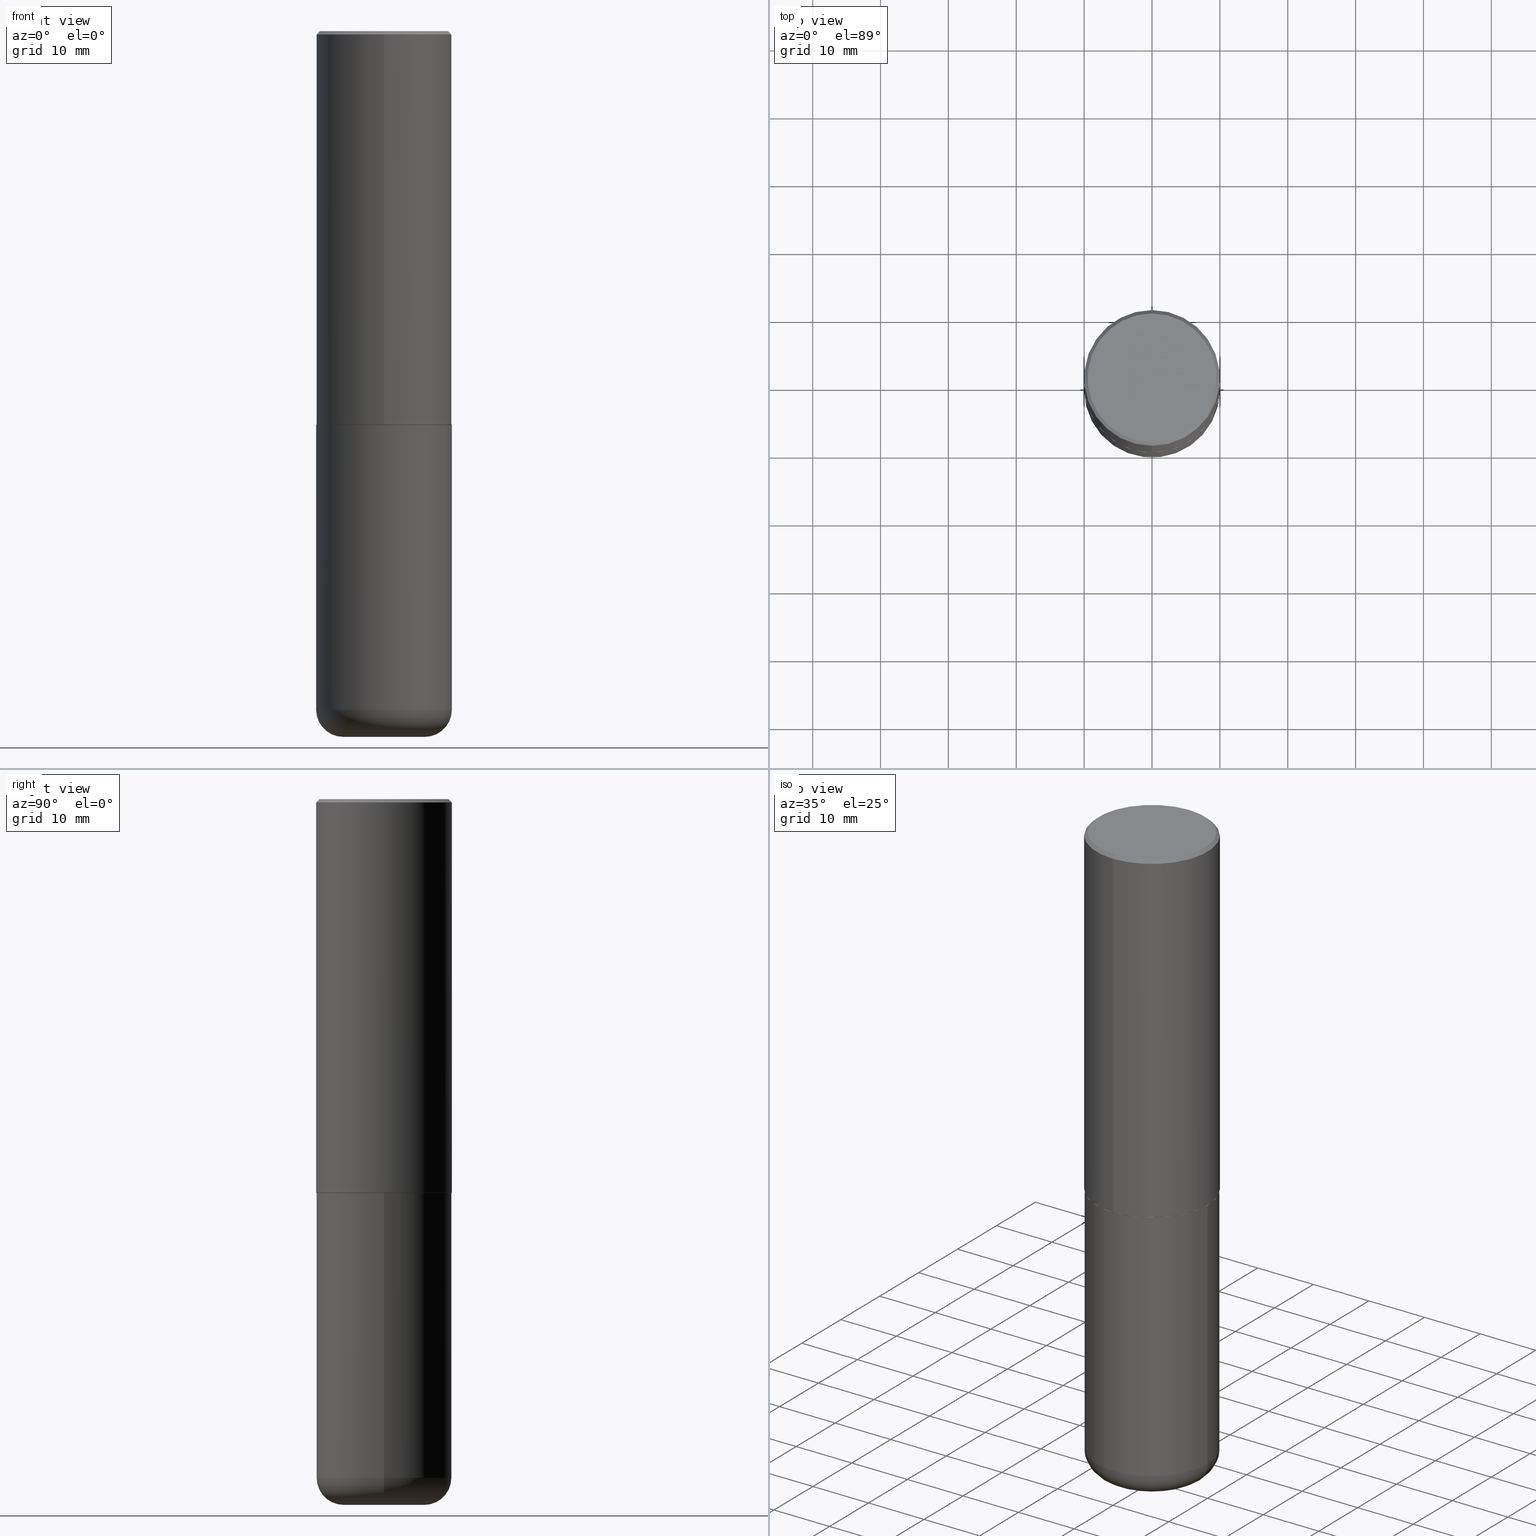
[diagram: canonical four-view strip — front | top / right | iso, engineering-drawing reading convention]
A machine part, canonical four-view strip (front | top / right | iso — engineering-drawing reading convention). The complete STEP part file that produces these views, byte-faithful:
ISO-10303-21;
HEADER;
FILE_DESCRIPTION (( 'STEP AP203' ),
    '1' );
FILE_NAME ('43497.STEP',
    '2024-03-04T06:41:14',
    ( '' ),
    ( '' ),
    'SwSTEP 2.0',
    'SolidWorks 2023',
    '' );
FILE_SCHEMA (( 'CONFIG_CONTROL_DESIGN' ));
ENDSEC;

DATA;
#1 = AXIS2_PLACEMENT_3D ( 'NONE', #91, #226, #31 ) ;
#2 = AXIS2_PLACEMENT_3D ( 'NONE', #84, #58, #211 ) ;
#3 = ADVANCED_FACE ( 'NONE', ( #16 ), #225, .T. ) ;
#4 = ORIENTED_EDGE ( 'NONE', *, *, #263, .F. ) ;
#5 = DIRECTION ( 'NONE',  ( -6.982962677686265922E-15, -1.000000000000000000, 3.490275841951731363E-15 ) ) ;
#6 = ORIENTED_EDGE ( 'NONE', *, *, #345, .F. ) ;
#7 = CIRCLE ( 'NONE', #312, 0.3926999999999999935 ) ;
#8 = CARTESIAN_POINT ( 'NONE',  ( 2.793854037008770686E-15, 0.3926999999999920554, -2.283500000000001862 ) ) ;
#9 = DIRECTION ( 'NONE',  ( -4.851104656540959542E-15, -0.7071067811865493491, -0.7071067811865457964 ) ) ;
#10 = DIRECTION ( 'NONE',  ( 0.000000000000000000, 0.000000000000000000, 1.000000000000000000 ) ) ;
#11 = CARTESIAN_POINT ( 'NONE',  ( -0.3936999999999999389, -1.094855528033794942E-14, -3.937000000000000277 ) ) ;
#12 = ORIENTED_EDGE ( 'NONE', *, *, #351, .F. ) ;
#13 = DIRECTION ( 'NONE',  ( -2.445468806185136597E-29, 3.491481338843145583E-15, 1.000000000000000000 ) ) ;
#14 = FACE_OUTER_BOUND ( 'NONE', #178, .T. ) ;
#15 = APPLICATION_PROTOCOL_DEFINITION ( 'international standard', 'config_control_design', 1994, #86 ) ;
#16 = FACE_OUTER_BOUND ( 'NONE', #124, .T. ) ;
#17 = TOROIDAL_SURFACE ( 'NONE', #117, 0.2362000000000000210, 0.1574999999999998346 ) ;
#18 = VECTOR ( 'NONE', #193, 39.37007874015748143 ) ;
#19 = CARTESIAN_POINT ( 'NONE',  ( -2.742209443527340799E-15, -0.3927000000000079871, -2.283499999999999197 ) ) ;
#20 = CC_DESIGN_PERSON_AND_ORGANIZATION_ASSIGNMENT ( #368, #402, ( #273 ) ) ;
#21 = ORIENTED_EDGE ( 'NONE', *, *, #265, .F. ) ;
#22 = CARTESIAN_POINT ( 'NONE',  ( 0.2362000000000000210, -1.539533781549495994E-14, -3.937000000000000277 ) ) ;
#23 = DATE_TIME_ROLE ( 'classification_date' ) ;
#24 = DIRECTION ( 'NONE',  ( 2.446310600165217615E-29, -3.490275841951731758E-15, -1.000000000000000000 ) ) ;
#25 = CIRCLE ( 'NONE', #393, 0.3937000000000000499 ) ;
#26 = CIRCLE ( 'NONE', #367, 0.3926999999999999935 ) ;
#27 = EDGE_CURVE ( 'NONE', #400, #52, #111, .T. ) ;
#28 = VERTEX_POINT ( 'NONE', #308 ) ;
#29 = ORIENTED_EDGE ( 'NONE', *, *, #247, .T. ) ;
#30 = LINE ( 'NONE', #62, #123 ) ;
#31 = DIRECTION ( 'NONE',  ( 1.000000000000000000, -6.982962677686262766E-15, 0.000000000000000000 ) ) ;
#32 = DIRECTION ( 'NONE',  ( -2.446310600165217615E-29, 3.490275841951731758E-15, 1.000000000000000000 ) ) ;
#33 = AXIS2_PLACEMENT_3D ( 'NONE', #136, #10, #165 ) ;
#34 = CC_DESIGN_PERSON_AND_ORGANIZATION_ASSIGNMENT ( #341, #51, ( #390 ) ) ;
#35 = ORIENTED_EDGE ( 'NONE', *, *, #134, .T. ) ;
#36 = DIRECTION ( 'NONE',  ( -6.982962677686265922E-15, -1.000000000000000000, 3.490275841951731758E-15 ) ) ;
#37 = AXIS2_PLACEMENT_3D ( 'NONE', #160, #293, #201 ) ;
#38 = LOCAL_TIME ( 1, 41, 14.00000000000000000, #288 ) ;
#39 = CARTESIAN_POINT ( 'NONE',  ( -2.749192406205084005E-15, -0.3937000000000001609, 1.374121598976397400E-15 ) ) ;
#40 = VERTEX_POINT ( 'NONE', #19 ) ;
#41 = ORIENTED_EDGE ( 'NONE', *, *, #395, .F. ) ;
#42 = CONICAL_SURFACE ( 'NONE', #281, 0.3937000000000000499, 0.7853981633974473908 ) ;
#43 = ORIENTED_EDGE ( 'NONE', *, *, #247, .F. ) ;
#44 = APPROVAL_PERSON_ORGANIZATION ( #339, #183, #412 ) ;
#45 = CARTESIAN_POINT ( 'NONE',  ( 9.627810689950883669E-29, -1.374596203102546341E-14, -3.937000000000000277 ) ) ;
#46 = ORIENTED_EDGE ( 'NONE', *, *, #27, .F. ) ;
#47 = EDGE_LOOP ( 'NONE', ( #206, #262, #120, #126 ) ) ;
#48 = DIRECTION ( 'NONE',  ( -2.446310600165217615E-29, 3.490275841951731758E-15, 1.000000000000000000 ) ) ;
#49 = CONICAL_SURFACE ( 'NONE', #151, 0.3926999999999999935, 0.7853981633975507526 ) ;
#50 = DIRECTION ( 'NONE',  ( -6.982962677686265133E-15, -1.000000000000000000, 3.478288761986584267E-15 ) ) ;
#51 = PERSON_AND_ORGANIZATION_ROLE ( 'design_supplier' ) ;
#52 = VERTEX_POINT ( 'NONE', #234 ) ;
#53 = ORIENTED_EDGE ( 'NONE', *, *, #27, .T. ) ;
#54 = PERSON_AND_ORGANIZATION_ROLE ( 'classification_officer' ) ;
#55 = ORIENTED_EDGE ( 'NONE', *, *, #292, .T. ) ;
#56 = ADVANCED_FACE ( 'NONE', ( #313 ), #391, .F. ) ;
#57 = ORIENTED_EDGE ( 'NONE', *, *, #327, .T. ) ;
#58 = DIRECTION ( 'NONE',  ( -2.446310600165217615E-29, 3.490275841951731758E-15, 1.000000000000000000 ) ) ;
#59 = VECTOR ( 'NONE', #319, 39.37007874015748143 ) ;
#60 = LINE ( 'NONE', #290, #18 ) ;
#61 = DIRECTION ( 'NONE',  ( 1.000000000000000000, -6.982962677686267499E-15, 0.000000000000000000 ) ) ;
#62 = CARTESIAN_POINT ( 'NONE',  ( -2.700978061722651252E-15, -0.3937000000000001054, -0.01999999999999870978 ) ) ;
#63 = ADVANCED_FACE ( 'NONE', ( #237 ), #328, .T. ) ;
#64 = CARTESIAN_POINT ( 'NONE',  ( 5.584228018923760468E-29, -7.972797637248324710E-15, -2.283500000000000529 ) ) ;
#65 = APPROVAL_STATUS ( 'not_yet_approved' ) ;
#66 = AXIS2_PLACEMENT_3D ( 'NONE', #83, #342, #208 ) ;
#67 = CLOSED_SHELL ( 'NONE', ( #235, #63, #289, #110, #71, #3, #56, #386 ) ) ;
#68 = MECHANICAL_CONTEXT ( 'NONE', #381, 'mechanical' ) ;
#69 = DIRECTION ( 'NONE',  ( -2.446310600165217615E-29, 3.490275841951731363E-15, 1.000000000000000000 ) ) ;
#70 = CARTESIAN_POINT ( 'NONE',  ( 9.627810689950883669E-29, -1.374596203102546341E-14, -3.937000000000000277 ) ) ;
#71 = ADVANCED_FACE ( 'NONE', ( #269 ), #394, .T. ) ;
#72 = DATE_AND_TIME ( #310, #322 ) ;
#73 = AXIS2_PLACEMENT_3D ( 'NONE', #129, #156, #417 ) ;
#74 = ORIENTED_EDGE ( 'NONE', *, *, #345, .T. ) ;
#75 = CIRCLE ( 'NONE', #306, 0.3937000000000002720 ) ;
#76 = CALENDAR_DATE ( 2024, 4, 3 ) ;
#77 = ORIENTED_EDGE ( 'NONE', *, *, #204, .F. ) ;
#78 = EDGE_CURVE ( 'NONE', #150, #295, #25, .T. ) ;
#79 = DIRECTION ( 'NONE',  ( -2.445468806185136877E-29, 3.491481338843145188E-15, 1.000000000000000000 ) ) ;
#80 = LINE ( 'NONE', #209, #161 ) ;
#81 = APPROVAL_DATE_TIME ( #249, #105 ) ;
#82 = APPROVAL_DATE_TIME ( #399, #183 ) ;
#83 = CARTESIAN_POINT ( 'NONE',  ( 1.662671372229937224E-28, -4.824615803317197833E-15, -4.094500000000000028 ) ) ;
#84 = CARTESIAN_POINT ( 'NONE',  ( 4.892621200330456179E-31, -6.980551683903491963E-17, -0.02000000000000008715 ) ) ;
#85 = DIRECTION ( 'NONE',  ( 1.000000000000000000, -6.982962677686272233E-15, 0.000000000000000000 ) ) ;
#86 = APPLICATION_CONTEXT ( 'configuration controlled 3d designs of mechanical parts and assemblies' ) ;
#87 = DIRECTION ( 'NONE',  ( -2.446310600165217615E-29, 3.490275841951731758E-15, 1.000000000000000000 ) ) ;
#88 = DIRECTION ( 'NONE',  ( 7.105427357601001859E-15, 1.000000000000000000, -3.491481338843145583E-15 ) ) ;
#89 = APPROVAL_DATE_TIME ( #200, #174 ) ;
#90 = DIRECTION ( 'NONE',  ( -2.446310600165217615E-29, 3.490275841951731758E-15, 1.000000000000000000 ) ) ;
#91 = CARTESIAN_POINT ( 'NONE',  ( 1.001297202692504102E-28, -1.429587034189325834E-14, -4.094500000000000028 ) ) ;
#92 = AXIS2_PLACEMENT_3D ( 'NONE', #135, #325, #36 ) ;
#93 = LOCAL_TIME ( 1, 41, 14.00000000000000000, #374 ) ;
#94 = EDGE_CURVE ( 'NONE', #329, #150, #128, .T. ) ;
#95 = CARTESIAN_POINT ( 'NONE',  ( 2.609533152651356620E-15, 0.3736999999999999211, -1.263990460575568665E-15 ) ) ;
#96 = ORIENTED_EDGE ( 'NONE', *, *, #365, .F. ) ;
#97 = EDGE_LOOP ( 'NONE', ( #106, #253, #53, #215 ) ) ;
#98 = CARTESIAN_POINT ( 'NONE',  ( 2.797406750687543580E-15, 0.3936999999999923339, -2.282500000000001528 ) ) ;
#99 = CIRCLE ( 'NONE', #330, 0.3937000000000000499 ) ;
#100 = CIRCLE ( 'NONE', #131, 0.3937000000000002720 ) ;
#101 = ADVANCED_FACE ( 'NONE', ( #121 ), #316, .T. ) ;
#102 = PLANE ( 'NONE',  #411 ) ;
#103 = CIRCLE ( 'NONE', #196, 0.2362000000000000766 ) ;
#104 = CIRCLE ( 'NONE', #109, 0.3937000000000000499 ) ;
#105 = APPROVAL ( #371, 'UNSPECIFIED' ) ;
#106 = ORIENTED_EDGE ( 'NONE', *, *, #164, .F. ) ;
#107 = CARTESIAN_POINT ( 'NONE',  ( 9.627810689950883669E-29, -1.374596203102546341E-14, -3.937000000000000277 ) ) ;
#108 = ORIENTED_EDGE ( 'NONE', *, *, #351, .T. ) ;
#109 = AXIS2_PLACEMENT_3D ( 'NONE', #45, #382, #61 ) ;
#110 = ADVANCED_FACE ( 'NONE', ( #231 ), #42, .T. ) ;
#111 = LINE ( 'NONE', #373, #259 ) ;
#112 = CALENDAR_DATE ( 2024, 4, 3 ) ;
#113 = ORIENTED_EDGE ( 'NONE', *, *, #352, .T. ) ;
#114 =( NAMED_UNIT ( * ) PLANE_ANGLE_UNIT ( ) SI_UNIT ( $, .RADIAN. ) );
#115 = PERSON_AND_ORGANIZATION_ROLE ( 'creator' ) ;
#116 = CONICAL_SURFACE ( 'NONE', #169, 0.3937000000000000499, 0.7853981633974473908 ) ;
#117 = AXIS2_PLACEMENT_3D ( 'NONE', #107, #300, #248 ) ;
#118 = CC_DESIGN_SECURITY_CLASSIFICATION ( #205, ( #390 ) ) ;
#119 = DIRECTION ( 'NONE',  ( 1.000000000000000000, -6.982962677686265922E-15, 4.876176775795935793E-29 ) ) ;
#120 = ORIENTED_EDGE ( 'NONE', *, *, #78, .F. ) ;
#121 = FACE_OUTER_BOUND ( 'NONE', #97, .T. ) ;
#122 = PRODUCT ( '43497', '43497', '', ( #68 ) ) ;
#123 = VECTOR ( 'NONE', #9, 39.37007874015748143 ) ;
#124 = EDGE_LOOP ( 'NONE', ( #4, #210, #113, #384 ) ) ;
#125 = UNCERTAINTY_MEASURE_WITH_UNIT (LENGTH_MEASURE( 1.000000000000000082E-05 ), #250, 'distance_accuracy_value', 'NONE');
#126 = ORIENTED_EDGE ( 'NONE', *, *, #94, .F. ) ;
#127 = PLANE ( 'NONE',  #409 ) ;
#128 = LINE ( 'NONE', #39, #59 ) ;
#129 = CARTESIAN_POINT ( 'NONE',  ( 0.000000000000000000, 0.000000000000000000, 0.000000000000000000 ) ) ;
#130 = EDGE_CURVE ( 'NONE', #28, #403, #397, .T. ) ;
#131 = AXIS2_PLACEMENT_3D ( 'NONE', #354, #32, #389 ) ;
#132 = CARTESIAN_POINT ( 'NONE',  ( 4.892621200330456179E-31, -6.980551683903491963E-17, -0.02000000000000008715 ) ) ;
#133 = ORIENTED_EDGE ( 'NONE', *, *, #236, .T. ) ;
#134 = EDGE_CURVE ( 'NONE', #264, #137, #103, .T. ) ;
#135 = CARTESIAN_POINT ( 'NONE',  ( 0.000000000000000000, 0.000000000000000000, 0.000000000000000000 ) ) ;
#136 = CARTESIAN_POINT ( 'NONE',  ( 0.000000000000000000, 0.000000000000000000, 0.000000000000000000 ) ) ;
#137 = VERTEX_POINT ( 'NONE', #186 ) ;
#138 = DIRECTION ( 'NONE',  ( -6.982962677686265133E-15, -1.000000000000000000, 3.478288761986584267E-15 ) ) ;
#139 = CC_DESIGN_DATE_AND_TIME_ASSIGNMENT ( #377, #213, ( #273 ) ) ;
#140 = EDGE_LOOP ( 'NONE', ( #74, #379, #96, #189 ) ) ;
#141 = DIRECTION ( 'NONE',  ( -2.446310600165217895E-29, 3.490275841951731363E-15, 1.000000000000000000 ) ) ;
#142 = LENGTH_MEASURE_WITH_UNIT ( LENGTH_MEASURE( 0.02539999999999999897 ), #177 );
#143 = CIRCLE ( 'NONE', #216, 0.1574999999999997791 ) ;
#144 = DIRECTION ( 'NONE',  ( -6.982962677686265133E-15, -1.000000000000000000, 3.491137977679279424E-15 ) ) ;
#145 = COORDINATED_UNIVERSAL_TIME_OFFSET ( 5, 0, .BEHIND. ) ;
#146 = PERSON_AND_ORGANIZATION ( #168, #260 ) ;
#147 = ORIENTED_EDGE ( 'NONE', *, *, #318, .T. ) ;
#148 = PRODUCT_RELATED_PRODUCT_CATEGORY ( 'detail', '', ( #122 ) ) ;
#149 = DIRECTION ( 'NONE',  ( -2.446310600165217615E-29, 3.490275841951731758E-15, 1.000000000000000000 ) ) ;
#150 = VERTEX_POINT ( 'NONE', #355 ) ;
#151 = AXIS2_PLACEMENT_3D ( 'NONE', #180, #370, #138 ) ;
#152 =( GEOMETRIC_REPRESENTATION_CONTEXT ( 3 ) GLOBAL_UNCERTAINTY_ASSIGNED_CONTEXT ( ( #125 ) ) GLOBAL_UNIT_ASSIGNED_CONTEXT ( ( #250, #114, #251 ) ) REPRESENTATION_CONTEXT ( 'NONE', 'WORKASPACE' ) );
#153 = CARTESIAN_POINT ( 'NONE',  ( 0.2362000000000000766, -1.594524612636275486E-14, -4.094500000000000028 ) ) ;
#154 = EDGE_CURVE ( 'NONE', #197, #400, #99, .T. ) ;
#155 = DIRECTION ( 'NONE',  ( -2.445468806185136597E-29, 3.491481338843145583E-15, 1.000000000000000000 ) ) ;
#156 = DIRECTION ( 'NONE',  ( -2.445468806185136597E-29, 3.491481338843145583E-15, 1.000000000000000000 ) ) ;
#157 = CIRCLE ( 'NONE', #356, 0.3736999999999999211 ) ;
#158 = DIRECTION ( 'NONE',  ( 1.000000000000000000, -6.982962677686265133E-15, 0.000000000000000000 ) ) ;
#159 = DIRECTION ( 'NONE',  ( -2.445468806185136597E-29, 3.491481338843145583E-15, 1.000000000000000000 ) ) ;
#160 = CARTESIAN_POINT ( 'NONE',  ( 0.000000000000000000, 0.000000000000000000, 0.000000000000000000 ) ) ;
#161 = VECTOR ( 'NONE', #141, 39.37007874015748143 ) ;
#162 = CC_DESIGN_APPROVAL ( #174, ( #205 ) ) ;
#163 = ORIENTED_EDGE ( 'NONE', *, *, #130, .F. ) ;
#164 = EDGE_CURVE ( 'NONE', #197, #258, #303, .T. ) ;
#165 = DIRECTION ( 'NONE',  ( 1.000000000000000000, 0.000000000000000000, 0.000000000000000000 ) ) ;
#166 = EDGE_LOOP ( 'NONE', ( #163, #271, #278, #407 ) ) ;
#167 = DIRECTION ( 'NONE',  ( 2.438088387897960049E-29, -3.491481338843145188E-15, -1.000000000000000000 ) ) ;
#168 = PERSON ( 'UNSPECIFIED', 'UNSPECIFIED', 'UNSPECIFIED', ('UNSPECIFIED'), ('UNSPECIFIED'), ('UNSPECIFIED') ) ;
#169 = AXIS2_PLACEMENT_3D ( 'NONE', #287, #261, #388 ) ;
#170 = AXIS2_PLACEMENT_3D ( 'NONE', #70, #241, #202 ) ;
#171 = APPROVAL_PERSON_ORGANIZATION ( #240, #174, #227 ) ;
#172 = ORIENTED_EDGE ( 'NONE', *, *, #318, .F. ) ;
#173 = DESIGN_CONTEXT ( 'detailed design', #86, 'design' ) ;
#174 = APPROVAL ( #65, 'UNSPECIFIED' ) ;
#175 = APPROVAL_STATUS ( 'not_yet_approved' ) ;
#176 = ORIENTED_EDGE ( 'NONE', *, *, #265, .T. ) ;
#177 =( LENGTH_UNIT ( ) NAMED_UNIT ( * ) SI_UNIT ( $, .METRE. ) );
#178 = EDGE_LOOP ( 'NONE', ( #41, #176, #55, #347 ) ) ;
#179 = LINE ( 'NONE', #305, #357 ) ;
#180 = CARTESIAN_POINT ( 'NONE',  ( 5.586150255477275930E-29, -7.970044885096780947E-15, -2.283500000000000529 ) ) ;
#181 = CIRCLE ( 'NONE', #239, 0.3937000000000000499 ) ;
#182 = ORIENTED_EDGE ( 'NONE', *, *, #130, .T. ) ;
#183 = APPROVAL ( #175, 'UNSPECIFIED' ) ;
#184 = CARTESIAN_POINT ( 'NONE',  ( -0.3937000000000000499, 2.797406750687514786E-15, -1.936584745033356735E-29 ) ) ;
#185 = COORDINATED_UNIVERSAL_TIME_OFFSET ( 5, 0, .BEHIND. ) ;
#186 = CARTESIAN_POINT ( 'NONE',  ( -0.2362000000000000766, -1.178306184018292647E-14, -4.094500000000000028 ) ) ;
#187 = DIRECTION ( 'NONE',  ( 6.982962677686265922E-15, 1.000000000000000000, -3.490275841951731363E-15 ) ) ;
#188 = DIRECTION ( 'NONE',  ( 6.982962677686265133E-15, 1.000000000000000000, -3.491137977679279424E-15 ) ) ;
#189 = ORIENTED_EDGE ( 'NONE', *, *, #352, .F. ) ;
#190 = CIRCLE ( 'NONE', #2, 0.3937000000000000499 ) ;
#191 = ADVANCED_FACE ( 'NONE', ( #14 ), #17, .T. ) ;
#192 = CALENDAR_DATE ( 2024, 4, 3 ) ;
#193 = DIRECTION ( 'NONE',  ( 4.937700262164543309E-15, 0.7071067811865444641, -0.7071067811865506814 ) ) ;
#194 = FACE_OUTER_BOUND ( 'NONE', #311, .T. ) ;
#195 = CARTESIAN_POINT ( 'NONE',  ( 5.584228018923760468E-29, -7.972797637248324710E-15, -2.283500000000000529 ) ) ;
#196 = AXIS2_PLACEMENT_3D ( 'NONE', #414, #155, #229 ) ;
#197 = VERTEX_POINT ( 'NONE', #11 ) ;
#198 = AXIS2_PLACEMENT_3D ( 'NONE', #195, #415, #199 ) ;
#199 = DIRECTION ( 'NONE',  ( 1.000000000000000000, -6.982962677686265133E-15, 0.000000000000000000 ) ) ;
#200 = DATE_AND_TIME ( #192, #38 ) ;
#201 = DIRECTION ( 'NONE',  ( -6.982962677686265922E-15, -1.000000000000000000, 3.490275841951731758E-15 ) ) ;
#202 = DIRECTION ( 'NONE',  ( 1.000000000000000000, -6.982962677686266711E-15, 4.883557194083112340E-29 ) ) ;
#203 = AXIS2_PLACEMENT_3D ( 'NONE', #280, #410, #119 ) ;
#204 = EDGE_CURVE ( 'NONE', #320, #295, #80, .T. ) ;
#205 = SECURITY_CLASSIFICATION ( '', '', #282 ) ;
#206 = ORIENTED_EDGE ( 'NONE', *, *, #365, .T. ) ;
#207 = AXIS2_PLACEMENT_3D ( 'NONE', #359, #69, #5 ) ;
#208 = DIRECTION ( 'NONE',  ( -1.000000000000000000, 6.982962677686265922E-15, -4.876176775795935793E-29 ) ) ;
#209 = CARTESIAN_POINT ( 'NONE',  ( 2.797406750687515181E-15, 0.3937000000000001609, -1.374121598976397400E-15 ) ) ;
#210 = ORIENTED_EDGE ( 'NONE', *, *, #214, .T. ) ;
#211 = DIRECTION ( 'NONE',  ( -6.982962677686265133E-15, -1.000000000000000000, 3.491137977679279424E-15 ) ) ;
#212 = EDGE_LOOP ( 'NONE', ( #6, #266 ) ) ;
#213 = DATE_TIME_ROLE ( 'creation_date' ) ;
#214 = EDGE_CURVE ( 'NONE', #413, #40, #7, .T. ) ;
#215 = ORIENTED_EDGE ( 'NONE', *, *, #236, .F. ) ;
#216 = AXIS2_PLACEMENT_3D ( 'NONE', #323, #88, #223 ) ;
#217 = PERSON_AND_ORGANIZATION_ROLE ( 'design_owner' ) ;
#218 = CARTESIAN_POINT ( 'NONE',  ( -1.972979909697315555E-45, 2.814950854976294212E-31, 8.065124312358642244E-17 ) ) ;
#219 = CARTESIAN_POINT ( 'NONE',  ( -2.749192406205029180E-15, -0.3937000000000082656, -2.282499999999998863 ) ) ;
#220 = ORIENTED_EDGE ( 'NONE', *, *, #392, .T. ) ;
#221 = ADVANCED_FACE ( 'NONE', ( #398 ), #244, .T. ) ;
#222 = CARTESIAN_POINT ( 'NONE',  ( 2.790301323329968999E-15, 0.3926999999999920554, -2.283500000000001862 ) ) ;
#223 = DIRECTION ( 'NONE',  ( -1.000000000000000000, 7.105427357601006592E-15, 0.000000000000000000 ) ) ;
#224 = PRODUCT_DEFINITION_SHAPE ( 'NONE', 'NONE',  #273 ) ;
#225 = CONICAL_SURFACE ( 'NONE', #267, 0.3926999999999999935, 0.7853981633975507526 ) ;
#226 = DIRECTION ( 'NONE',  ( -2.445468806185136597E-29, 3.491481338843145583E-15, 1.000000000000000000 ) ) ;
#227 = APPROVAL_ROLE ( '' ) ;
#228 = MANIFOLD_SOLID_BREP ( 'Body-Move/Copy2[2]', #67 ) ;
#229 = DIRECTION ( 'NONE',  ( 1.000000000000000000, -6.982962677686262766E-15, 0.000000000000000000 ) ) ;
#230 = CC_DESIGN_DATE_AND_TIME_ASSIGNMENT ( #72, #23, ( #205 ) ) ;
#231 = FACE_OUTER_BOUND ( 'NONE', #369, .T. ) ;
#232 = MANIFOLD_SOLID_BREP ( 'Body-Move/Copy2[1]', #321 ) ;
#233 = FACE_OUTER_BOUND ( 'NONE', #272, .T. ) ;
#234 = CARTESIAN_POINT ( 'NONE',  ( 0.3937000000000000499, -1.072199004345340635E-14, -2.283500000000000529 ) ) ;
#235 = ADVANCED_FACE ( 'NONE', ( #360 ), #49, .T. ) ;
#236 = EDGE_CURVE ( 'NONE', #258, #52, #181, .T. ) ;
#237 = FACE_OUTER_BOUND ( 'NONE', #47, .T. ) ;
#238 = APPLICATION_PROTOCOL_DEFINITION ( 'international standard', 'config_control_design', 1994, #381 ) ;
#239 = AXIS2_PLACEMENT_3D ( 'NONE', #64, #159, #158 ) ;
#240 = PERSON_AND_ORGANIZATION ( #168, #260 ) ;
#241 = DIRECTION ( 'NONE',  ( -2.445468806185136597E-29, 3.491481338843145583E-15, 1.000000000000000000 ) ) ;
#242 = TOROIDAL_SURFACE ( 'NONE', #170, 0.2362000000000000210, 0.1574999999999998346 ) ;
#243 = ORIENTED_EDGE ( 'NONE', *, *, #324, .T. ) ;
#244 = CYLINDRICAL_SURFACE ( 'NONE', #203, 0.3937000000000000499 ) ;
#245 = PERSON_AND_ORGANIZATION ( #168, #260 ) ;
#246 = DIRECTION ( 'NONE',  ( -4.937700262165053702E-15, -0.7071067811866175168, 0.7071067811864775177 ) ) ;
#247 = EDGE_CURVE ( 'NONE', #403, #28, #157, .T. ) ;
#248 = DIRECTION ( 'NONE',  ( 1.000000000000000000, -6.982962677686266711E-15, 4.883557194083112340E-29 ) ) ;
#249 = DATE_AND_TIME ( #112, #93 ) ;
#250 =( CONVERSION_BASED_UNIT ( 'INCH', #142 ) LENGTH_UNIT ( ) NAMED_UNIT ( #337 ) );
#251 =( NAMED_UNIT ( * ) SI_UNIT ( $, .STERADIAN. ) SOLID_ANGLE_UNIT ( ) );
#252 = CIRCLE ( 'NONE', #408, 0.1574999999999997791 ) ;
#253 = ORIENTED_EDGE ( 'NONE', *, *, #154, .T. ) ;
#254 = LINE ( 'NONE', #222, #338 ) ;
#255 = CARTESIAN_POINT ( 'NONE',  ( 5.586150255477275930E-29, -7.970044885096780947E-15, -2.283500000000000529 ) ) ;
#256 = CC_DESIGN_PERSON_AND_ORGANIZATION_ASSIGNMENT ( #297, #217, ( #122 ) ) ;
#257 = DIRECTION ( 'NONE',  ( -6.982962677686265922E-15, -1.000000000000000000, 3.469453890861393601E-15 ) ) ;
#258 = VERTEX_POINT ( 'NONE', #291 ) ;
#259 = VECTOR ( 'NONE', #79, 39.37007874015748143 ) ;
#260 = ORGANIZATION ( 'UNSPECIFIED', 'UNSPECIFIED', '' ) ;
#261 = DIRECTION ( 'NONE',  ( 2.446310600165217615E-29, -3.490275841951731758E-15, -1.000000000000000000 ) ) ;
#262 = ORIENTED_EDGE ( 'NONE', *, *, #204, .T. ) ;
#263 = EDGE_CURVE ( 'NONE', #413, #320, #254, .T. ) ;
#264 = VERTEX_POINT ( 'NONE', #153 ) ;
#265 = EDGE_CURVE ( 'NONE', #137, #264, #366, .T. ) ;
#266 = ORIENTED_EDGE ( 'NONE', *, *, #214, .F. ) ;
#267 = AXIS2_PLACEMENT_3D ( 'NONE', #255, #383, #335 ) ;
#268 = APPROVAL_PERSON_ORGANIZATION ( #245, #105, #275 ) ;
#269 = FACE_OUTER_BOUND ( 'NONE', #326, .T. ) ;
#270 = EDGE_LOOP ( 'NONE', ( #304, #21 ) ) ;
#271 = ORIENTED_EDGE ( 'NONE', *, *, #333, .T. ) ;
#272 = EDGE_LOOP ( 'NONE', ( #220, #133 ) ) ;
#273 = PRODUCT_DEFINITION ( 'UNKNOWN', '', #390, #173 ) ;
#274 = DIRECTION ( 'NONE',  ( -2.445468806185136877E-29, 3.491481338843145188E-15, 1.000000000000000000 ) ) ;
#275 = APPROVAL_ROLE ( '' ) ;
#276 = PLANE ( 'NONE',  #66 ) ;
#277 = DIRECTION ( 'NONE',  ( 1.000000000000000000, -6.982962677686267499E-15, 0.000000000000000000 ) ) ;
#278 = ORIENTED_EDGE ( 'NONE', *, *, #78, .T. ) ;
#279 = DIRECTION ( 'NONE',  ( -6.982962677686266711E-15, -1.000000000000000000, 3.491481338843145583E-15 ) ) ;
#280 = CARTESIAN_POINT ( 'NONE',  ( 0.000000000000000000, 0.000000000000000000, 0.000000000000000000 ) ) ;
#281 = AXIS2_PLACEMENT_3D ( 'NONE', #375, #24, #188 ) ;
#282 = SECURITY_CLASSIFICATION_LEVEL ( 'unclassified' ) ;
#283 = LOCAL_TIME ( 1, 41, 14.00000000000000000, #361 ) ;
#284 = EDGE_LOOP ( 'NONE', ( #147, #336, #362, #46 ) ) ;
#285 = CARTESIAN_POINT ( 'NONE',  ( -1.972979909697315555E-45, 2.814950854976294212E-31, 8.065124312358642244E-17 ) ) ;
#286 = DIRECTION ( 'NONE',  ( -6.982962677686265133E-15, -1.000000000000000000, 3.490275841951731363E-15 ) ) ;
#287 = CARTESIAN_POINT ( 'NONE',  ( 4.892621200330456179E-31, -6.980551683903491963E-17, -0.02000000000000008715 ) ) ;
#288 = COORDINATED_UNIVERSAL_TIME_OFFSET ( 5, 0, .BEHIND. ) ;
#289 = ADVANCED_FACE ( 'NONE', ( #385 ), #116, .T. ) ;
#290 = CARTESIAN_POINT ( 'NONE',  ( 2.749192406205083217E-15, 0.3936999999999999389, -0.02000000000000146105 ) ) ;
#291 = CARTESIAN_POINT ( 'NONE',  ( -0.3937000000000000499, -8.061973083449380064E-15, -2.283500000000000529 ) ) ;
#292 = EDGE_CURVE ( 'NONE', #264, #400, #252, .T. ) ;
#293 = DIRECTION ( 'NONE',  ( -2.446310600165217615E-29, 3.490275841951731758E-15, 1.000000000000000000 ) ) ;
#294 = CC_DESIGN_APPROVAL ( #183, ( #273 ) ) ;
#295 = VERTEX_POINT ( 'NONE', #346 ) ;
#296 = EDGE_LOOP ( 'NONE', ( #35, #396, #172, #343 ) ) ;
#297 = PERSON_AND_ORGANIZATION ( #168, #260 ) ;
#298 = DIRECTION ( 'NONE',  ( -1.000000000000000000, 6.982962677686265922E-15, -4.876176775795935793E-29 ) ) ;
#299 = ADVANCED_FACE ( 'NONE', ( #372 ), #276, .T. ) ;
#300 = DIRECTION ( 'NONE',  ( -2.445468806185136597E-29, 3.491481338843145583E-15, 1.000000000000000000 ) ) ;
#301 = CALENDAR_DATE ( 2024, 4, 3 ) ;
#302 = CARTESIAN_POINT ( 'NONE',  ( 5.584228018923760468E-29, -7.972797637248324710E-15, -2.283500000000000529 ) ) ;
#303 = LINE ( 'NONE', #184, #387 ) ;
#304 = ORIENTED_EDGE ( 'NONE', *, *, #134, .F. ) ;
#305 = CARTESIAN_POINT ( 'NONE',  ( -2.742209443527340799E-15, -0.3927000000000079871, -2.283499999999999197 ) ) ;
#306 = AXIS2_PLACEMENT_3D ( 'NONE', #404, #48, #257 ) ;
#307 = DIRECTION ( 'NONE',  ( -2.446310600165217615E-29, 3.490275841951731758E-15, 1.000000000000000000 ) ) ;
#308 = CARTESIAN_POINT ( 'NONE',  ( -2.632373081744935921E-15, -0.3736999999999999211, 1.384967325260948274E-15 ) ) ;
#309 = PERSON_AND_ORGANIZATION ( #168, #260 ) ;
#310 = CALENDAR_DATE ( 2024, 4, 3 ) ;
#311 = EDGE_LOOP ( 'NONE', ( #29, #182 ) ) ;
#312 = AXIS2_PLACEMENT_3D ( 'NONE', #406, #149, #50 ) ;
#313 = FACE_OUTER_BOUND ( 'NONE', #212, .T. ) ;
#314 = CARTESIAN_POINT ( 'NONE',  ( 0.3936999999999999389, -1.649515443723054663E-14, -3.937000000000000277 ) ) ;
#315 = ORIENTED_EDGE ( 'NONE', *, *, #94, .T. ) ;
#316 = CYLINDRICAL_SURFACE ( 'NONE', #73, 0.3937000000000000499 ) ;
#317 = DIRECTION ( 'NONE',  ( 2.446310600165217615E-29, -3.490275841951731363E-15, -1.000000000000000000 ) ) ;
#318 = EDGE_CURVE ( 'NONE', #400, #197, #104, .T. ) ;
#319 = DIRECTION ( 'NONE',  ( -2.446310600165217895E-29, 3.490275841951731363E-15, 1.000000000000000000 ) ) ;
#320 = VERTEX_POINT ( 'NONE', #98 ) ;
#321 = CLOSED_SHELL ( 'NONE', ( #221, #416, #405, #101, #191, #299 ) ) ;
#322 = LOCAL_TIME ( 1, 41, 14.00000000000000000, #185 ) ;
#323 = CARTESIAN_POINT ( 'NONE',  ( -0.2362000000000000210, -1.206766008916010702E-14, -3.937000000000000277 ) ) ;
#324 = EDGE_CURVE ( 'NONE', #320, #329, #100, .T. ) ;
#325 = DIRECTION ( 'NONE',  ( -2.446310600165217615E-29, 3.490275841951731758E-15, 1.000000000000000000 ) ) ;
#326 = EDGE_LOOP ( 'NONE', ( #77, #243, #315, #12 ) ) ;
#327 = EDGE_CURVE ( 'NONE', #403, #295, #60, .T. ) ;
#328 = CYLINDRICAL_SURFACE ( 'NONE', #92, 0.3937000000000001609 ) ;
#329 = VERTEX_POINT ( 'NONE', #219 ) ;
#330 = AXIS2_PLACEMENT_3D ( 'NONE', #363, #13, #277 ) ;
#331 = LOCAL_TIME ( 1, 41, 14.00000000000000000, #145 ) ;
#332 = ORIENTED_EDGE ( 'NONE', *, *, #333, .F. ) ;
#333 = EDGE_CURVE ( 'NONE', #28, #150, #30, .T. ) ;
#334 = CARTESIAN_POINT ( 'NONE',  ( 5.586150255477275930E-29, -7.970044885096780947E-15, -2.283500000000000529 ) ) ;
#335 = DIRECTION ( 'NONE',  ( -6.982962677686265133E-15, -1.000000000000000000, 3.478288761986584267E-15 ) ) ;
#336 = ORIENTED_EDGE ( 'NONE', *, *, #164, .T. ) ;
#337 = DIMENSIONAL_EXPONENTS ( 1.000000000000000000, 0.000000000000000000, 0.000000000000000000, 0.000000000000000000, 0.000000000000000000, 0.000000000000000000, 0.000000000000000000 ) ;
#338 = VECTOR ( 'NONE', #348, 39.37007874015748143 ) ;
#339 = PERSON_AND_ORGANIZATION ( #168, #260 ) ;
#340 = DIRECTION ( 'NONE',  ( -2.446310600165217615E-29, 3.490275841951731758E-15, 1.000000000000000000 ) ) ;
#341 = PERSON_AND_ORGANIZATION ( #168, #260 ) ;
#342 = DIRECTION ( 'NONE',  ( 2.438088387897960049E-29, -3.491481338843145188E-15, -1.000000000000000000 ) ) ;
#343 = ORIENTED_EDGE ( 'NONE', *, *, #292, .F. ) ;
#344 = DIRECTION ( 'NONE',  ( -6.982962677686265133E-15, -1.000000000000000000, 3.490275841951731363E-15 ) ) ;
#345 = EDGE_CURVE ( 'NONE', #40, #413, #26, .T. ) ;
#346 = CARTESIAN_POINT ( 'NONE',  ( 2.749192406205083217E-15, 0.3936999999999999389, -0.02000000000000146105 ) ) ;
#347 = ORIENTED_EDGE ( 'NONE', *, *, #154, .F. ) ;
#348 = DIRECTION ( 'NONE',  ( 5.024295867788576727E-15, 0.7071067811866224018, 0.7071067811864726327 ) ) ;
#349 = AXIS2_PLACEMENT_3D ( 'NONE', #285, #90, #344 ) ;
#350 = CIRCLE ( 'NONE', #198, 0.3937000000000000499 ) ;
#351 = EDGE_CURVE ( 'NONE', #295, #150, #190, .T. ) ;
#352 = EDGE_CURVE ( 'NONE', #40, #329, #179, .T. ) ;
#353 = SHAPE_DEFINITION_REPRESENTATION ( #224, #364 ) ;
#354 = CARTESIAN_POINT ( 'NONE',  ( 5.583703944877110670E-29, -7.966554609254827797E-15, -2.282500000000000195 ) ) ;
#355 = CARTESIAN_POINT ( 'NONE',  ( -2.700978061722651252E-15, -0.3937000000000001054, -0.01999999999999870978 ) ) ;
#356 = AXIS2_PLACEMENT_3D ( 'NONE', #218, #87, #286 ) ;
#357 = VECTOR ( 'NONE', #246, 39.37007874015748143 ) ;
#358 = CC_DESIGN_PERSON_AND_ORGANIZATION_ASSIGNMENT ( #146, #115, ( #390 ) ) ;
#359 = CARTESIAN_POINT ( 'NONE',  ( 5.586150255477275930E-29, -7.970044885096780947E-15, -2.283500000000000529 ) ) ;
#360 = FACE_OUTER_BOUND ( 'NONE', #140, .T. ) ;
#361 = COORDINATED_UNIVERSAL_TIME_OFFSET ( 5, 0, .BEHIND. ) ;
#362 = ORIENTED_EDGE ( 'NONE', *, *, #392, .F. ) ;
#363 = CARTESIAN_POINT ( 'NONE',  ( 9.627810689950883669E-29, -1.374596203102546341E-14, -3.937000000000000277 ) ) ;
#364 = ADVANCED_BREP_SHAPE_REPRESENTATION ( '43497', ( #232, #228, #33 ), #152 ) ;
#365 = EDGE_CURVE ( 'NONE', #329, #320, #75, .T. ) ;
#366 = CIRCLE ( 'NONE', #1, 0.2362000000000000766 ) ;
#367 = AXIS2_PLACEMENT_3D ( 'NONE', #334, #307, #380 ) ;
#368 = PERSON_AND_ORGANIZATION ( #168, #260 ) ;
#369 = EDGE_LOOP ( 'NONE', ( #332, #43, #57, #108 ) ) ;
#370 = DIRECTION ( 'NONE',  ( -2.446310600165217615E-29, 3.490275841951731758E-15, 1.000000000000000000 ) ) ;
#371 = APPROVAL_STATUS ( 'not_yet_approved' ) ;
#372 = FACE_OUTER_BOUND ( 'NONE', #270, .T. ) ;
#373 = CARTESIAN_POINT ( 'NONE',  ( 0.3937000000000000499, -2.749192406205083217E-15, 1.919750796630860172E-29 ) ) ;
#374 = COORDINATED_UNIVERSAL_TIME_OFFSET ( 5, 0, .BEHIND. ) ;
#375 = CARTESIAN_POINT ( 'NONE',  ( 4.892621200330456179E-31, -6.980551683903491963E-17, -0.02000000000000008715 ) ) ;
#376 = CC_DESIGN_APPROVAL ( #105, ( #390 ) ) ;
#377 = DATE_AND_TIME ( #76, #331 ) ;
#378 = CC_DESIGN_PERSON_AND_ORGANIZATION_ASSIGNMENT ( #309, #54, ( #205 ) ) ;
#379 = ORIENTED_EDGE ( 'NONE', *, *, #263, .T. ) ;
#380 = DIRECTION ( 'NONE',  ( -6.982962677686265133E-15, -1.000000000000000000, 3.478288761986584267E-15 ) ) ;
#381 = APPLICATION_CONTEXT ( 'configuration controlled 3d designs of mechanical parts and assemblies' ) ;
#382 = DIRECTION ( 'NONE',  ( -2.445468806185136597E-29, 3.491481338843145583E-15, 1.000000000000000000 ) ) ;
#383 = DIRECTION ( 'NONE',  ( -2.446310600165217615E-29, 3.490275841951731758E-15, 1.000000000000000000 ) ) ;
#384 = ORIENTED_EDGE ( 'NONE', *, *, #324, .F. ) ;
#385 = FACE_OUTER_BOUND ( 'NONE', #166, .T. ) ;
#386 = ADVANCED_FACE ( 'NONE', ( #194 ), #127, .F. ) ;
#387 = VECTOR ( 'NONE', #274, 39.37007874015748143 ) ;
#388 = DIRECTION ( 'NONE',  ( 6.982962677686265133E-15, 1.000000000000000000, -3.491137977679279424E-15 ) ) ;
#389 = DIRECTION ( 'NONE',  ( -6.982962677686265922E-15, -1.000000000000000000, 3.469453890861393601E-15 ) ) ;
#390 = PRODUCT_DEFINITION_FORMATION_WITH_SPECIFIED_SOURCE ( 'ANY', '', #122, .NOT_KNOWN. ) ;
#391 = PLANE ( 'NONE',  #207 ) ;
#392 = EDGE_CURVE ( 'NONE', #52, #258, #350, .T. ) ;
#393 = AXIS2_PLACEMENT_3D ( 'NONE', #132, #340, #144 ) ;
#394 = CYLINDRICAL_SURFACE ( 'NONE', #37, 0.3937000000000001609 ) ;
#395 = EDGE_CURVE ( 'NONE', #137, #197, #143, .T. ) ;
#396 = ORIENTED_EDGE ( 'NONE', *, *, #395, .T. ) ;
#397 = CIRCLE ( 'NONE', #349, 0.3736999999999999211 ) ;
#398 = FACE_OUTER_BOUND ( 'NONE', #284, .T. ) ;
#399 = DATE_AND_TIME ( #301, #283 ) ;
#400 = VERTEX_POINT ( 'NONE', #314 ) ;
#401 = FACE_OUTER_BOUND ( 'NONE', #296, .T. ) ;
#402 = PERSON_AND_ORGANIZATION_ROLE ( 'creator' ) ;
#403 = VERTEX_POINT ( 'NONE', #418 ) ;
#404 = CARTESIAN_POINT ( 'NONE',  ( 5.583703944877110670E-29, -7.966554609254827797E-15, -2.282500000000000195 ) ) ;
#405 = ADVANCED_FACE ( 'NONE', ( #233 ), #102, .F. ) ;
#406 = CARTESIAN_POINT ( 'NONE',  ( 5.586150255477275930E-29, -7.970044885096780947E-15, -2.283500000000000529 ) ) ;
#407 = ORIENTED_EDGE ( 'NONE', *, *, #327, .F. ) ;
#408 = AXIS2_PLACEMENT_3D ( 'NONE', #22, #279, #85 ) ;
#409 = AXIS2_PLACEMENT_3D ( 'NONE', #95, #317, #187 ) ;
#410 = DIRECTION ( 'NONE',  ( -2.445468806185136597E-29, 3.491481338843145583E-15, 1.000000000000000000 ) ) ;
#411 = AXIS2_PLACEMENT_3D ( 'NONE', #302, #167, #298 ) ;
#412 = APPROVAL_ROLE ( '' ) ;
#413 = VERTEX_POINT ( 'NONE', #8 ) ;
#414 = CARTESIAN_POINT ( 'NONE',  ( 1.001297202692504102E-28, -1.429587034189325834E-14, -4.094500000000000028 ) ) ;
#415 = DIRECTION ( 'NONE',  ( -2.445468806185136597E-29, 3.491481338843145583E-15, 1.000000000000000000 ) ) ;
#416 = ADVANCED_FACE ( 'NONE', ( #401 ), #242, .T. ) ;
#417 = DIRECTION ( 'NONE',  ( 1.000000000000000000, -6.982962677686265922E-15, 4.876176775795935793E-29 ) ) ;
#418 = CARTESIAN_POINT ( 'NONE',  ( 2.679362779428219918E-15, 0.3736999999999999211, -1.223664839013775133E-15 ) ) ;
ENDSEC;
END-ISO-10303-21;
